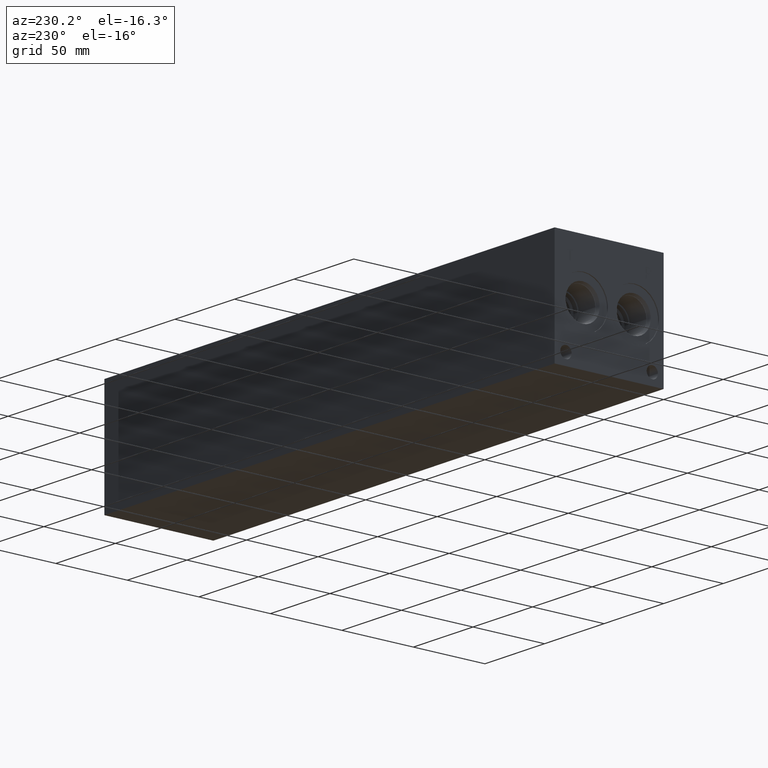
[diagram: clean part render]
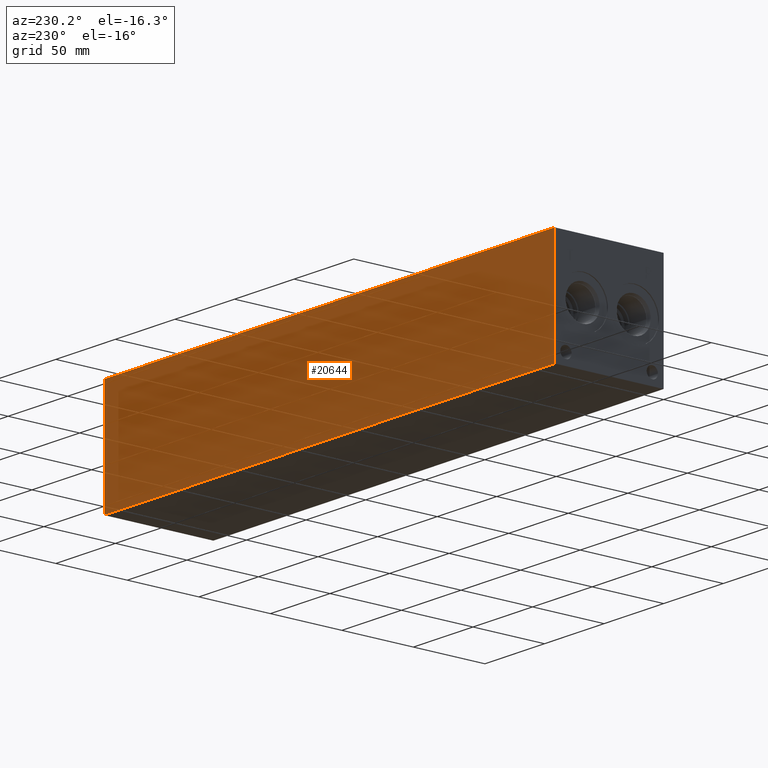
[diagram: same view with one face highlighted and labeled with its STEP entity id]
A machine part, auxiliary view. The second image highlights one B-rep face of the part: STEP entity #20644.
In plain terms, the highlighted planar face has unit normal (0, 1, 0).
Its self-contained STEP definition (entity closure, byte-faithful):
#1822=PLANE('',#22246);
#2903=FACE_OUTER_BOUND('',#4146,.T.);
#4146=EDGE_LOOP('',(#18560,#18561,#18562,#18563));
#5492=LINE('',#33452,#7194);
#5552=LINE('',#33725,#7254);
#5914=LINE('',#35989,#7616);
#5915=LINE('',#35990,#7617);
#7194=VECTOR('',#24427,10.);
#7254=VECTOR('',#24541,10.);
#7616=VECTOR('',#27121,10.);
#7617=VECTOR('',#27122,10.);
#9230=VERTEX_POINT('',#33449);
#9231=VERTEX_POINT('',#33451);
#9288=VERTEX_POINT('',#33721);
#9289=VERTEX_POINT('',#33723);
#11819=EDGE_CURVE('',#9230,#9231,#5492,.T.);
#11903=EDGE_CURVE('',#9288,#9289,#5552,.T.);
#12956=EDGE_CURVE('',#9230,#9288,#5914,.T.);
#12957=EDGE_CURVE('',#9231,#9289,#5915,.T.);
#18560=ORIENTED_EDGE('',*,*,#12956,.T.);
#18561=ORIENTED_EDGE('',*,*,#11903,.T.);
#18562=ORIENTED_EDGE('',*,*,#12957,.F.);
#18563=ORIENTED_EDGE('',*,*,#11819,.F.);
#20644=ADVANCED_FACE('',(#2903),#1822,.T.);
#22246=AXIS2_PLACEMENT_3D('',#35988,#27119,#27120);
#24427=DIRECTION('',(0.,0.,1.));
#24541=DIRECTION('',(0.,0.,1.));
#27119=DIRECTION('center_axis',(0.,1.,0.));
#27120=DIRECTION('ref_axis',(-1.,0.,0.));
#27121=DIRECTION('',(-1.,0.,0.));
#27122=DIRECTION('',(-1.,0.,0.));
#33449=CARTESIAN_POINT('',(377.825,76.2,0.));
#33451=CARTESIAN_POINT('',(377.825,76.2,76.2));
#33452=CARTESIAN_POINT('',(377.825,76.2,0.));
#33721=CARTESIAN_POINT('',(0.,76.2,0.));
#33723=CARTESIAN_POINT('',(0.,76.2,76.2));
#33725=CARTESIAN_POINT('',(0.,76.2,0.));
#35988=CARTESIAN_POINT('Origin',(377.825,76.2,0.));
#35989=CARTESIAN_POINT('',(377.825,76.2,0.));
#35990=CARTESIAN_POINT('',(377.825,76.2,76.2));